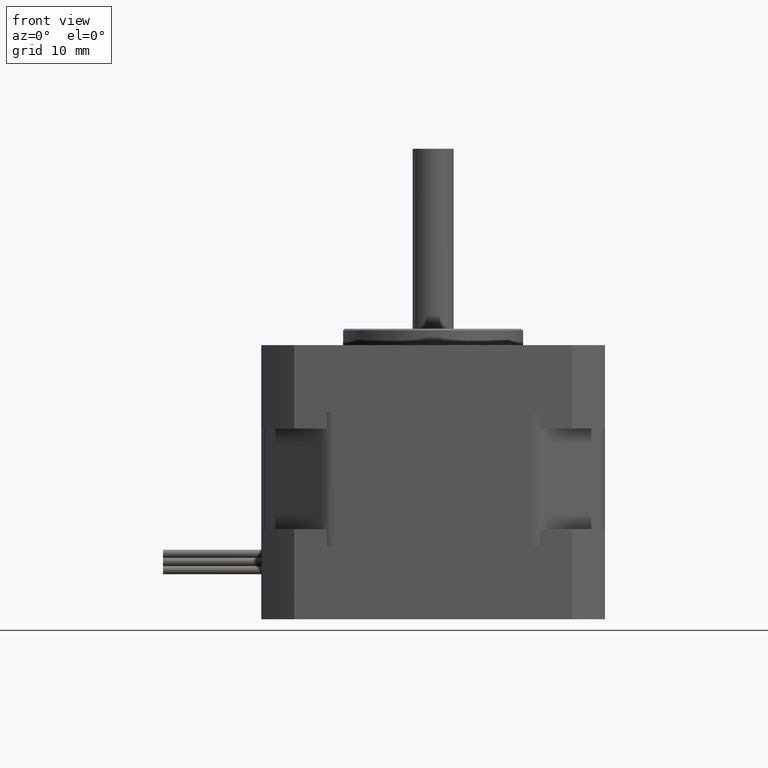
[diagram: clean part render]
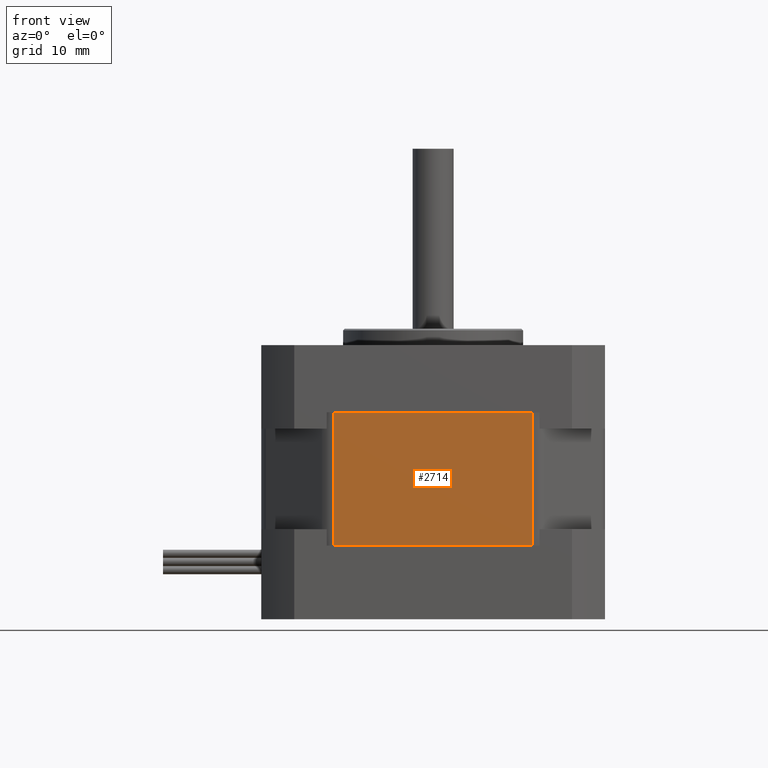
[diagram: same view with one face highlighted and labeled with its STEP entity id]
A machine part, front view. The second image highlights one B-rep face of the part: STEP entity #2714.
In plain terms, the highlighted planar face has unit normal (0, -1, 0).
Its self-contained STEP definition (entity closure, byte-faithful):
#131=PLANE('',#2934);
#232=FACE_OUTER_BOUND('',#424,.T.);
#424=EDGE_LOOP('',(#1783,#1784,#1785,#1786));
#681=LINE('',#4250,#839);
#691=LINE('',#4279,#849);
#692=LINE('',#4282,#850);
#693=LINE('',#4283,#851);
#839=VECTOR('',#3323,10.);
#849=VECTOR('',#3353,10.);
#850=VECTOR('',#3356,10.);
#851=VECTOR('',#3357,10.);
#1176=VERTEX_POINT('',#4247);
#1177=VERTEX_POINT('',#4249);
#1186=VERTEX_POINT('',#4277);
#1187=VERTEX_POINT('',#4281);
#1410=EDGE_CURVE('',#1177,#1176,#681,.T.);
#1425=EDGE_CURVE('',#1177,#1186,#691,.T.);
#1426=EDGE_CURVE('',#1187,#1176,#692,.T.);
#1427=EDGE_CURVE('',#1187,#1186,#693,.T.);
#1783=ORIENTED_EDGE('',*,*,#1425,.F.);
#1784=ORIENTED_EDGE('',*,*,#1410,.T.);
#1785=ORIENTED_EDGE('',*,*,#1426,.F.);
#1786=ORIENTED_EDGE('',*,*,#1427,.T.);
#2714=ADVANCED_FACE('',(#232),#131,.T.);
#2934=AXIS2_PLACEMENT_3D('',#4280,#3354,#3355);
#3323=DIRECTION('',(1.,1.02482125350014E-15,0.));
#3353=DIRECTION('',(0.,0.,1.));
#3354=DIRECTION('center_axis',(1.02482125350014E-15,-1.,0.));
#3355=DIRECTION('ref_axis',(0.,0.,-1.));
#3356=DIRECTION('',(0.,0.,-1.));
#3357=DIRECTION('',(-1.,-1.02482125350014E-15,0.));
#4247=CARTESIAN_POINT('',(12.1715728752538,-21.,-8.15));
#4249=CARTESIAN_POINT('',(-12.1715728752538,-21.,-8.15));
#4250=CARTESIAN_POINT('',(-13.,-21.,-8.15));
#4277=CARTESIAN_POINT('',(-12.1715728752538,-21.,8.15));
#4279=CARTESIAN_POINT('',(-12.1715728752538,-21.,0.));
#4280=CARTESIAN_POINT('Origin',(13.,-21.,0.));
#4281=CARTESIAN_POINT('',(12.1715728752538,-21.,8.15));
#4282=CARTESIAN_POINT('',(12.1715728752538,-21.,0.));
#4283=CARTESIAN_POINT('',(-13.,-21.,8.15));